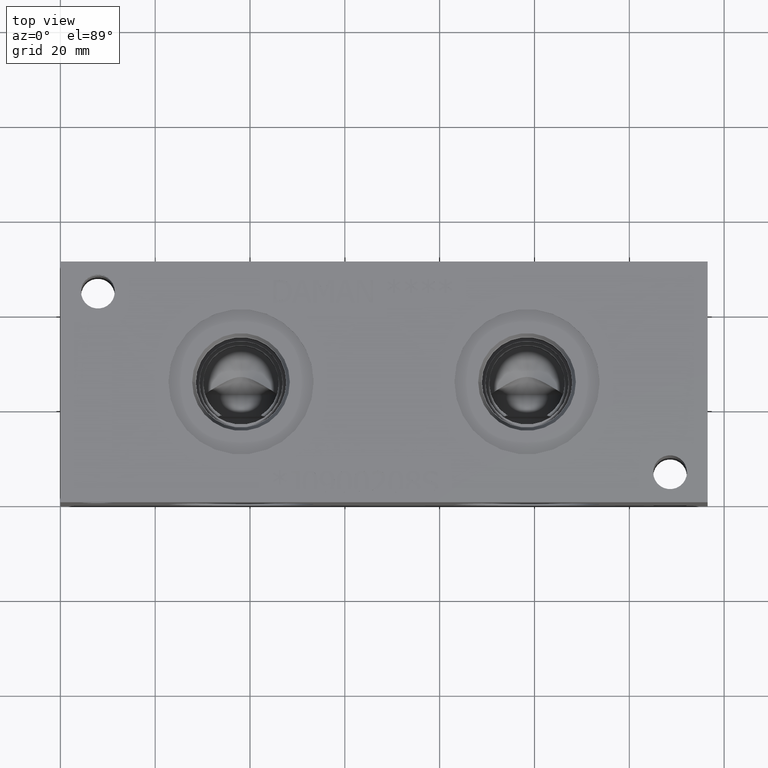
[diagram: clean part render]
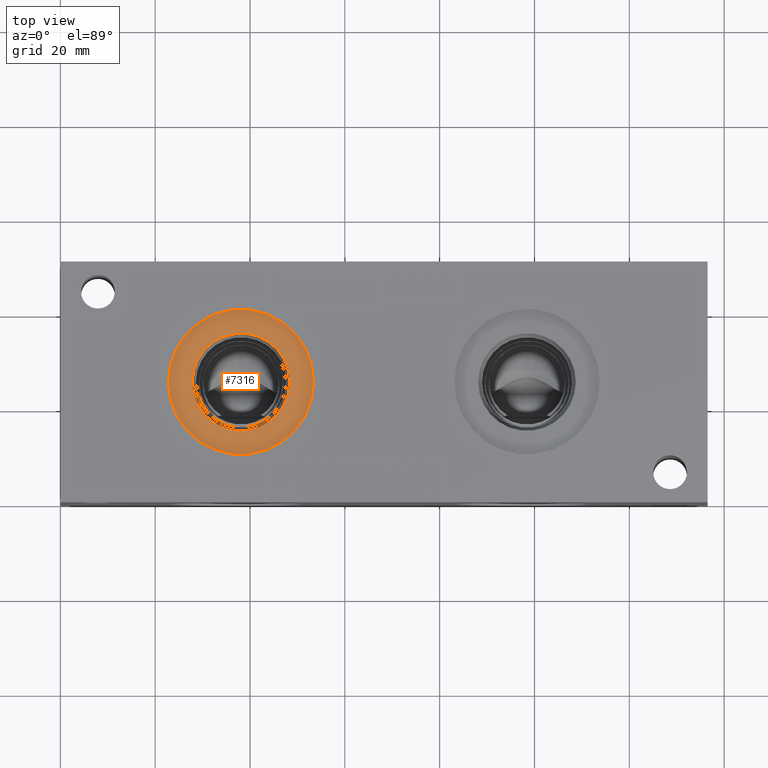
[diagram: same view with one face highlighted and labeled with its STEP entity id]
A machine part, top view. The second image highlights one B-rep face of the part: STEP entity #7316.
In plain terms, the highlighted planar face has unit normal (0, 0, -1).
Its self-contained STEP definition (entity closure, byte-faithful):
#148=CIRCLE('',#7669,15.3162);
#149=CIRCLE('',#7670,15.3162);
#150=CIRCLE('',#7672,10.2997);
#151=CIRCLE('',#7673,10.2997);
#196=FACE_BOUND('',#1191,.T.);
#403=PLANE('',#7671);
#775=FACE_OUTER_BOUND('',#1190,.T.);
#1190=EDGE_LOOP('',(#6461,#6462));
#1191=EDGE_LOOP('',(#6463,#6464));
#3451=VERTEX_POINT('',#12787);
#3452=VERTEX_POINT('',#12789);
#3453=VERTEX_POINT('',#12793);
#3454=VERTEX_POINT('',#12794);
#4462=EDGE_CURVE('',#3451,#3452,#148,.T.);
#4463=EDGE_CURVE('',#3452,#3451,#149,.T.);
#4464=EDGE_CURVE('',#3453,#3454,#150,.T.);
#4465=EDGE_CURVE('',#3454,#3453,#151,.T.);
#6461=ORIENTED_EDGE('',*,*,#4463,.F.);
#6462=ORIENTED_EDGE('',*,*,#4462,.F.);
#6463=ORIENTED_EDGE('',*,*,#4464,.T.);
#6464=ORIENTED_EDGE('',*,*,#4465,.T.);
#7316=ADVANCED_FACE('',(#775,#196),#403,.F.);
#7669=AXIS2_PLACEMENT_3D('',#12790,#8992,#8993);
#7670=AXIS2_PLACEMENT_3D('',#12791,#8994,#8995);
#7671=AXIS2_PLACEMENT_3D('',#12792,#8996,#8997);
#7672=AXIS2_PLACEMENT_3D('',#12795,#8998,#8999);
#7673=AXIS2_PLACEMENT_3D('',#12796,#9000,#9001);
#8992=DIRECTION('center_axis',(0.,0.,-1.));
#8993=DIRECTION('ref_axis',(1.,0.,0.));
#8994=DIRECTION('center_axis',(0.,0.,-1.));
#8995=DIRECTION('ref_axis',(1.,0.,0.));
#8996=DIRECTION('center_axis',(0.,0.,-1.));
#8997=DIRECTION('ref_axis',(-1.,0.,0.));
#8998=DIRECTION('center_axis',(0.,0.,-1.));
#8999=DIRECTION('ref_axis',(1.,0.,0.));
#9000=DIRECTION('center_axis',(0.,0.,-1.));
#9001=DIRECTION('ref_axis',(1.,0.,0.));
#12787=CARTESIAN_POINT('',(22.7838,25.4,50.0126));
#12789=CARTESIAN_POINT('',(53.4162,25.4,50.0126));
#12790=CARTESIAN_POINT('Origin',(38.1,25.4,50.0126));
#12791=CARTESIAN_POINT('Origin',(38.1,25.4,50.0126));
#12792=CARTESIAN_POINT('Origin',(48.3997,25.4,50.0126));
#12793=CARTESIAN_POINT('',(48.3997,25.4,50.0126));
#12794=CARTESIAN_POINT('',(27.8003,25.4,50.0126));
#12795=CARTESIAN_POINT('Origin',(38.1,25.4,50.0126));
#12796=CARTESIAN_POINT('Origin',(38.1,25.4,50.0126));